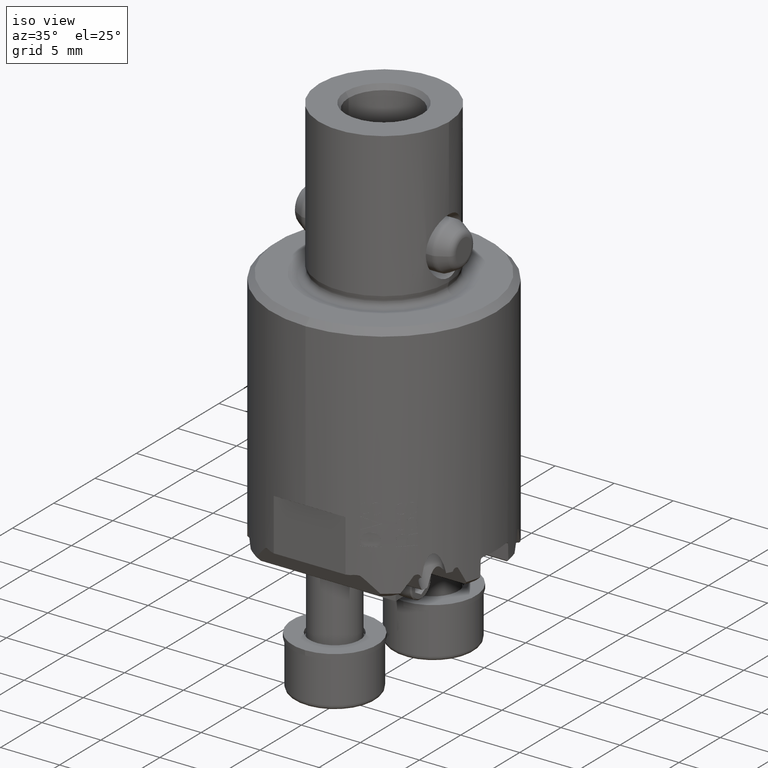
[diagram: clean part render]
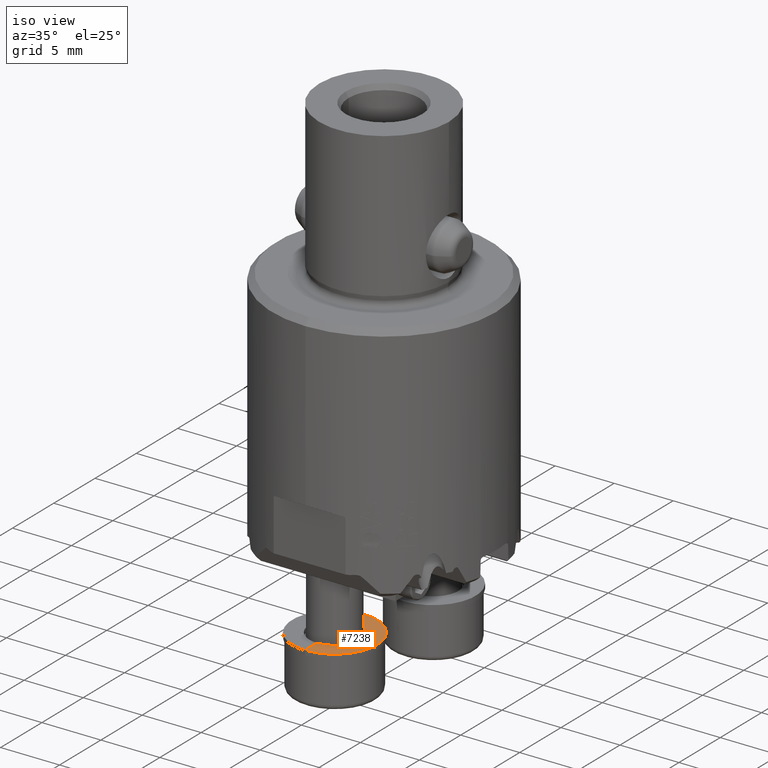
[diagram: same view with one face highlighted and labeled with its STEP entity id]
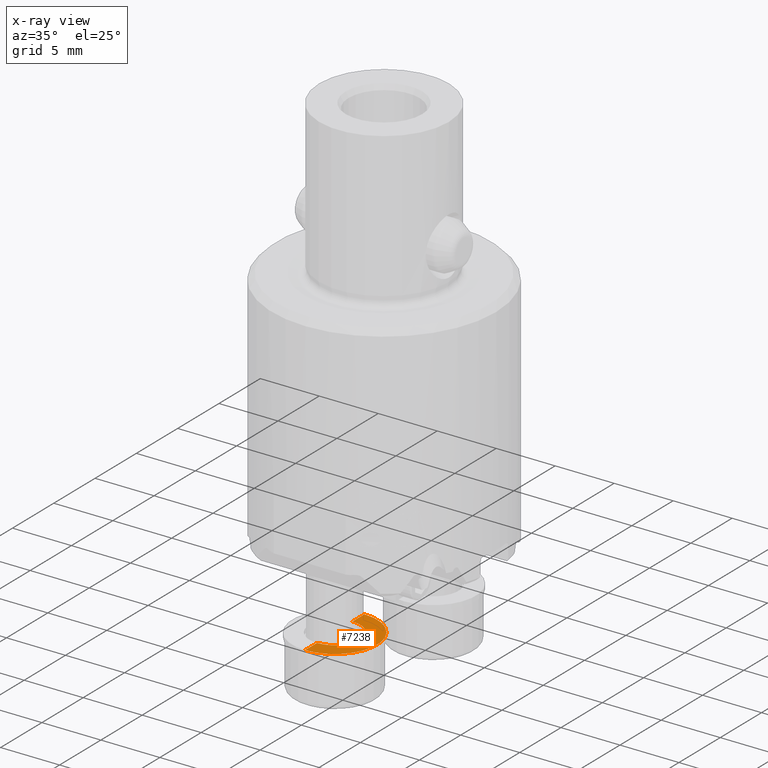
[diagram: x-ray of the same camera — body ghosted, the highlighted face saturated]
A machine part, iso view. The second image highlights one B-rep face of the part: STEP entity #7238.
The next image is the same camera in x-ray: the body ghosted, the highlighted face saturated — about 0% of this face is hidden behind the body in this view.
In plain terms, the highlighted conical surface has half-angle 89.96 deg.
Its self-contained STEP definition (entity closure, byte-faithful):
#6118=VERTEX_POINT('NONE',#13055);
#6852=EDGE_CURVE('NONE',#9200,#7790,#13871,.T.);
#7210=VERTEX_POINT('NONE',#14273);
#7238=ADVANCED_FACE('NONE',(#14303),#14304,.F.);
#7702=EDGE_CURVE('NONE',#6118,#9200,#14808,.T.);
#7790=VERTEX_POINT('NONE',#14903);
#7966=EDGE_CURVE('NONE',#6118,#7210,#15091,.T.);
#8904=EDGE_CURVE('NONE',#7210,#7790,#16136,.T.);
#9200=VERTEX_POINT('NONE',#16466);
#13055=CARTESIAN_POINT('',(-0.499999999999963,-3.1,-25.701000095179));
#13871=LINE('',#33909,#33910);
#14273=CARTESIAN_POINT('',(-0.499999999999962,-1.65027594077218,-25.6999999999999));
#14303=FACE_OUTER_BOUND('',#35249,.T.);
#14304=CONICAL_SURFACE('',#35250,2.15,1.57010647480952);
#14808=CIRCLE('',#37214,2.15);
#14903=CARTESIAN_POINT('',(-0.499999999999963,-8.84972405922783,-25.6999999999999));
#15091=LINE('',#38150,#38151);
#16136=CIRCLE('',#42179,3.59972405922774);
#16466=CARTESIAN_POINT('',(-0.499999999999963,-7.4,-25.701000095179));
#33909=CARTESIAN_POINT('',(-0.499999999999963,-7.4,-25.701000095179));
#33910=VECTOR('',#50017,1000.0);
#35249=EDGE_LOOP('',(#50489,#50490,#50491,#50492));
#35250=AXIS2_PLACEMENT_3D('',#50493,#50494,#50495);
#37214=AXIS2_PLACEMENT_3D('',#50982,#50983,#50984);
#38150=CARTESIAN_POINT('',(-0.499999999999963,-3.1,-25.701000095179));
#38151=VECTOR('',#51230,1000.0);
#42179=AXIS2_PLACEMENT_3D('',#52344,#52345,#52346);
#50017=DIRECTION('',(-2.7692010798231E-017,-0.999999762052128,0.00068985193065687));
#50489=ORIENTED_EDGE('',*,*,#7966,.F.);
#50490=ORIENTED_EDGE('',*,*,#7702,.T.);
#50491=ORIENTED_EDGE('',*,*,#6852,.T.);
#50492=ORIENTED_EDGE('',*,*,#8904,.F.);
#50493=CARTESIAN_POINT('',(-0.499999999999963,-5.25,-25.701000095179));
#50494=DIRECTION('',(0.0,-0.0,1.0));
#50495=DIRECTION('',(-2.76920173874876E-017,-1.0,0.0));
#50982=CARTESIAN_POINT('',(-0.499999999999963,-5.25,-25.701000095179));
#50983=DIRECTION('',(0.0,0.0,-1.0));
#50984=DIRECTION('',(2.76920173874876E-017,1.0,0.0));
#51230=DIRECTION('',(1.50156661572756E-016,0.999999762052128,0.00068985193065687));
#52344=CARTESIAN_POINT('',(-0.499999999999963,-5.25,-25.6999999999999));
#52345=DIRECTION('',(0.0,0.0,-1.0));
#52346=DIRECTION('',(2.76920173874876E-017,1.0,0.0));